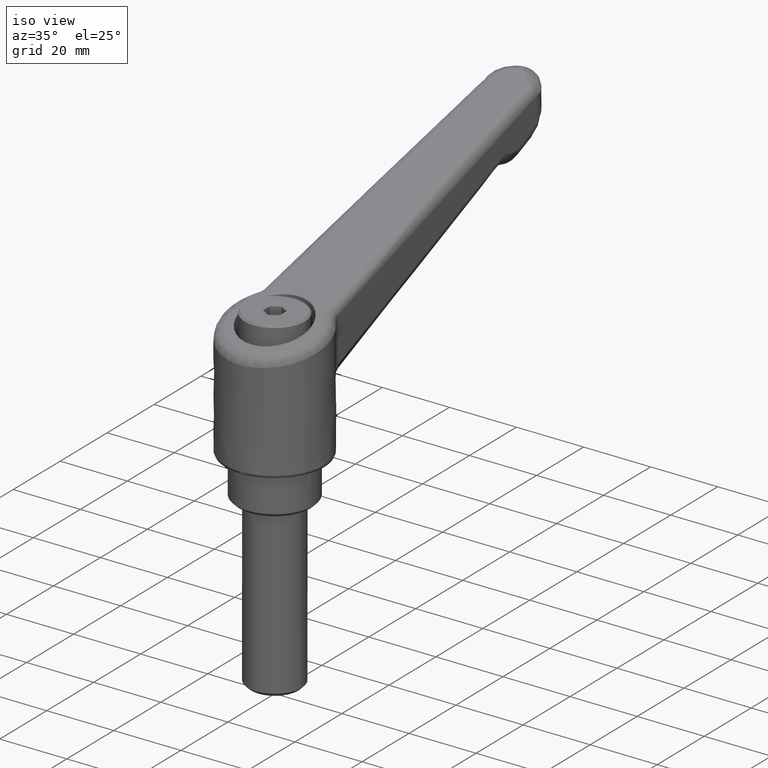
[diagram: clean part render]
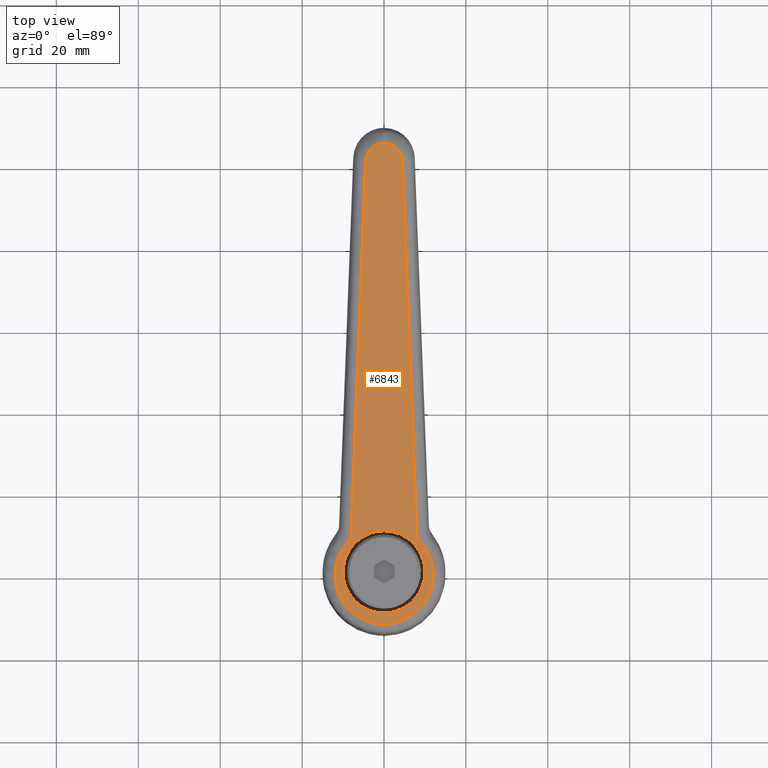
[diagram: tour spotlight — one face highlighted and labeled with its STEP entity id]
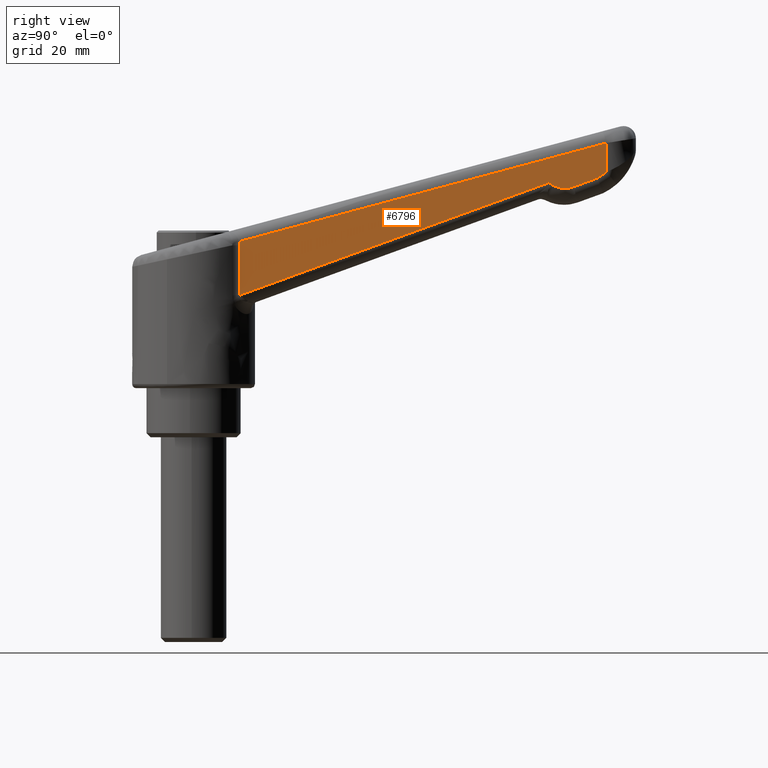
[diagram: tour spotlight — one face highlighted and labeled with its STEP entity id]
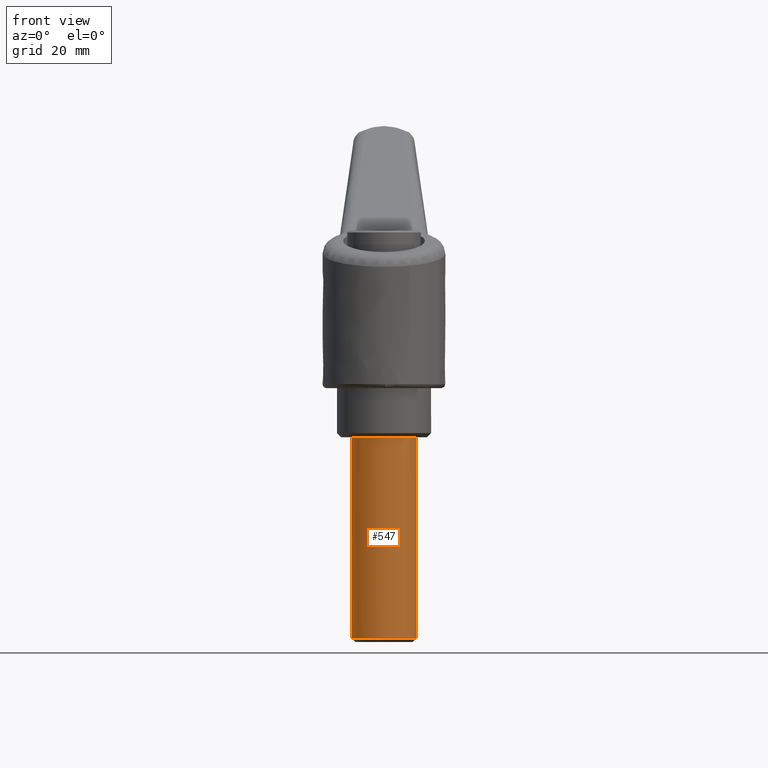
[diagram: tour spotlight — one face highlighted and labeled with its STEP entity id]
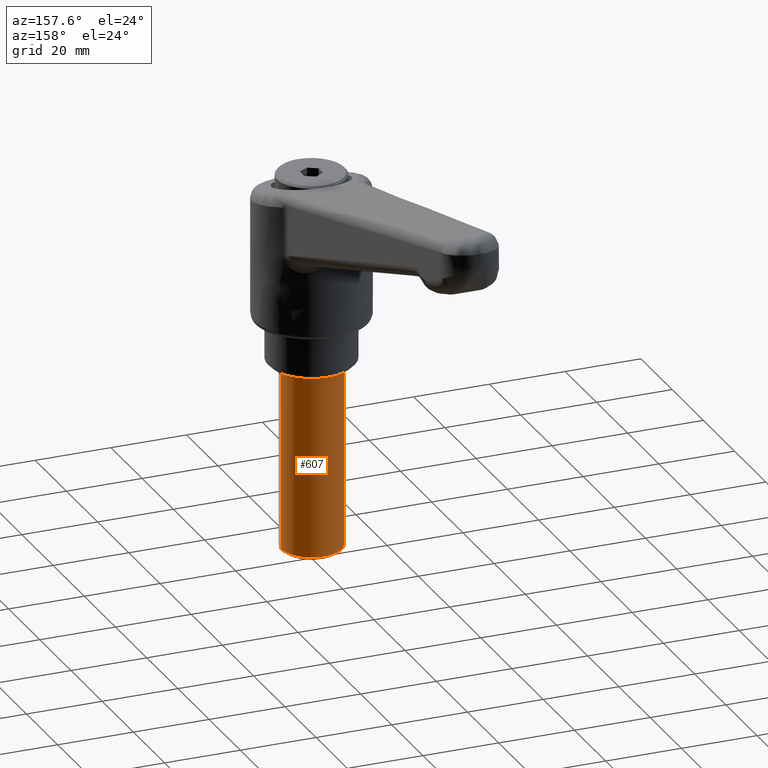
[diagram: tour spotlight — one face highlighted and labeled with its STEP entity id]
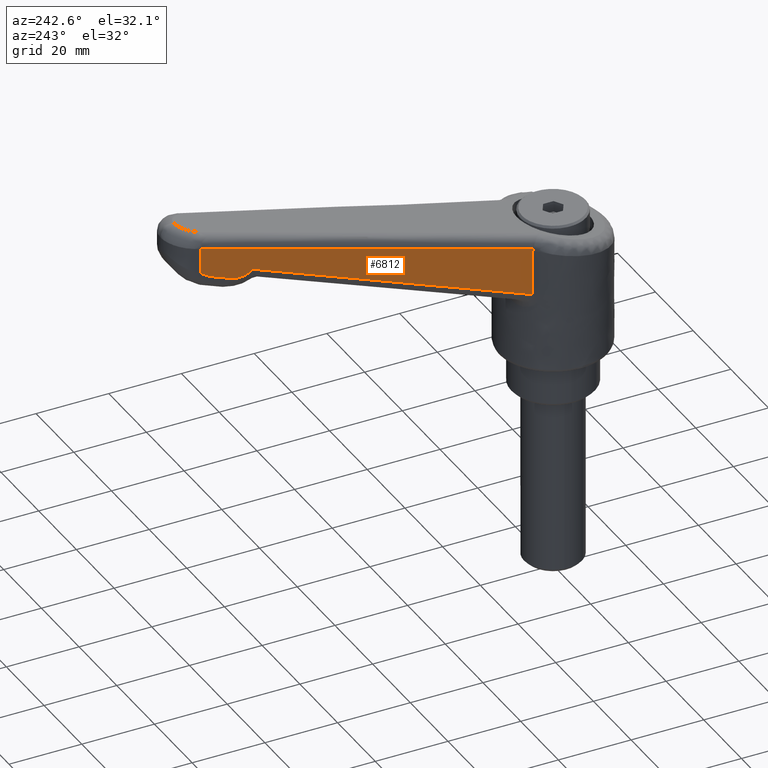
[diagram: tour spotlight — one face highlighted and labeled with its STEP entity id]
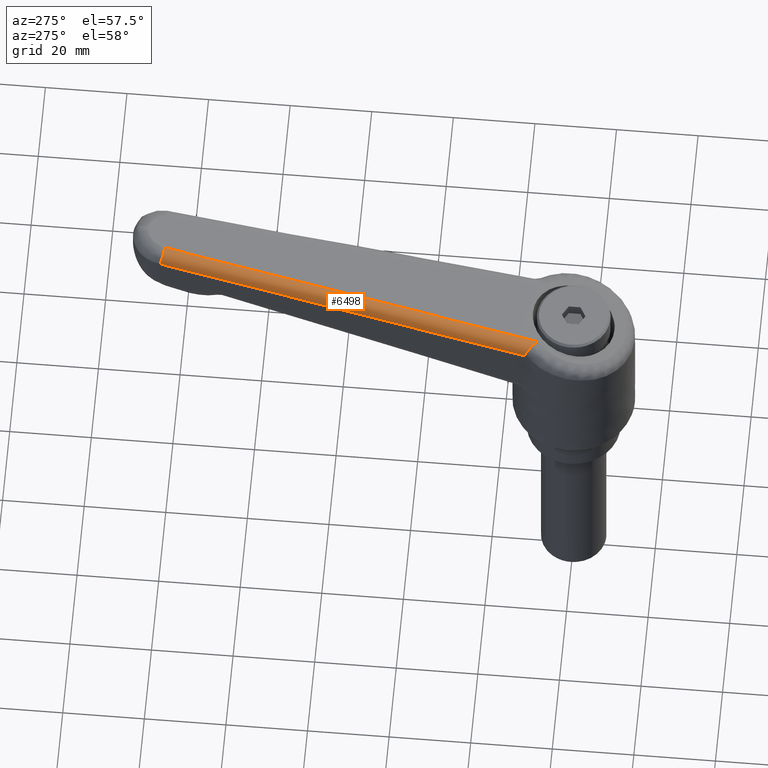
[diagram: tour spotlight — one face highlighted and labeled with its STEP entity id]
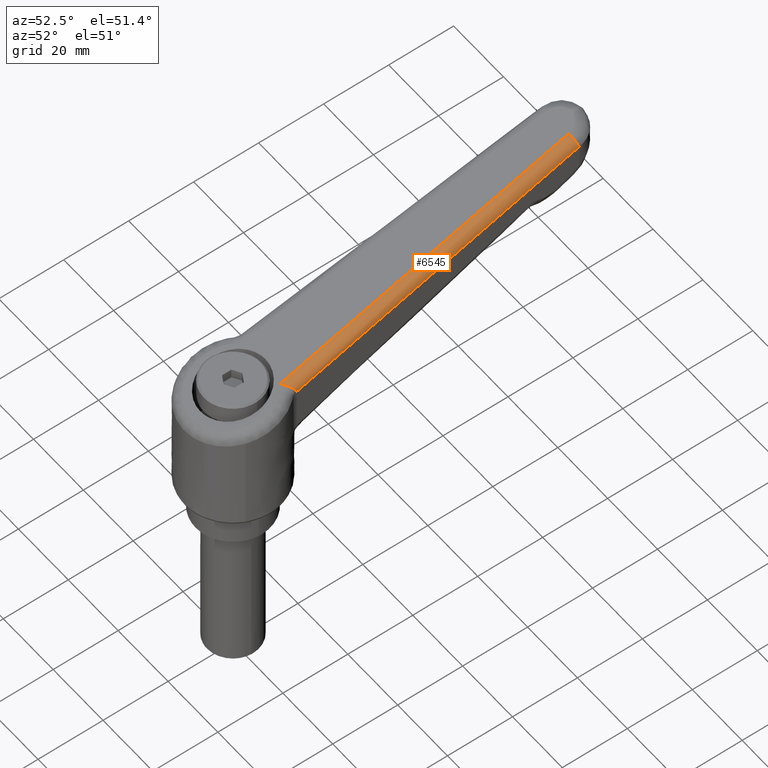
[diagram: tour spotlight — one face highlighted and labeled with its STEP entity id]
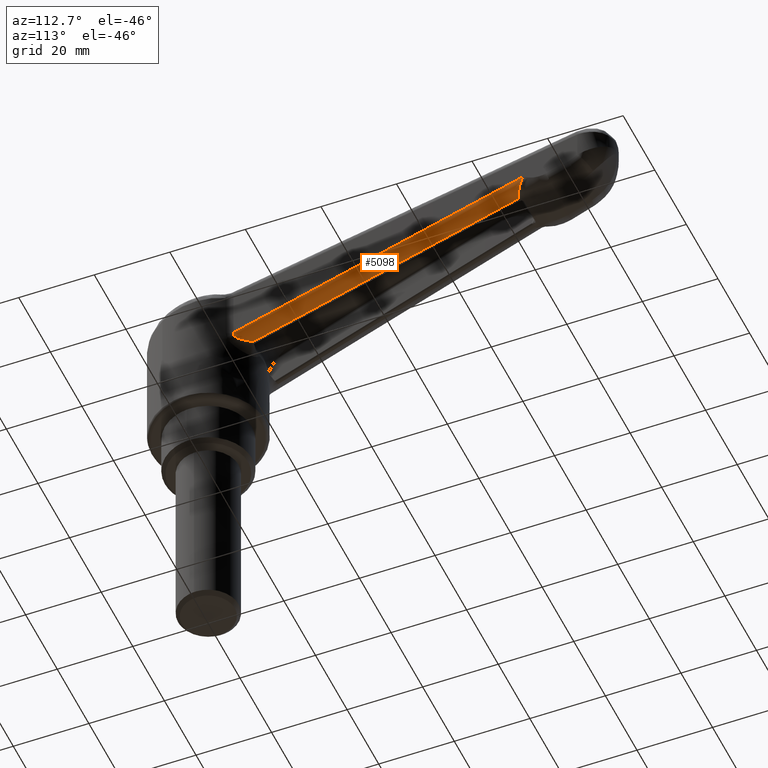
[diagram: tour spotlight — one face highlighted and labeled with its STEP entity id]
A machine part: a face-by-face anatomy tour. The part has 92 B-rep faces; the first image is the clean iso view, then the 8 largest visible faces are spotlighted one at a time (largest first), each with its STEP entity span.

Face 1 — top view, entity #6843. In plain terms, the highlighted face is a freeform B-spline surface patch.
Definition (entity closure, byte-faithful):
#1842=CARTESIAN_POINT('',(-0.087265355182425,-9.999619230639976,47.911946759522152));
#1843=VERTEX_POINT('',#1842);
#1849=CARTESIAN_POINT('',(9.999999999999998,1.224606E-015,50.618287176648231));
#1850=VERTEX_POINT('',#1849);
#1851=CARTESIAN_POINT('',(9.999999999999998,1.224606E-015,50.618287176648231));
#1852=CARTESIAN_POINT('',(9.999999999999998,-10.000000000000002,50.618287176648252));
#1853=CARTESIAN_POINT('',(1.836910E-015,-10.0,47.935359423886197));
#1854=CARTESIAN_POINT('',(-0.043633508405738,-10.0,47.923652868820994));
#1855=CARTESIAN_POINT('',(-0.087265355182425,-9.999619230639976,47.911946759522152));
#1863=(BOUNDED_CURVE()B_SPLINE_CURVE(2,(#1851,#1852,#1853,#1854,#1855),.UNSPECIFIED.,.F.,.U.)B_SPLINE_CURVE_WITH_KNOTS((3,2,3),(0.500000000000000,0.750000000000000,0.751539894341988),.UNSPECIFIED.)CURVE()GEOMETRIC_REPRESENTATION_ITEM()RATIONAL_B_SPLINE_CURVE((1.0,0.707106781186548,1.0,0.998195901558170,0.996414028084204))REPRESENTATION_ITEM(''));
#1864=EDGE_CURVE('',#1850,#1843,#1863,.T.);
#1866=CARTESIAN_POINT('',(-1.659384539936182,9.861361110344795,47.490158540388222));
#1867=VERTEX_POINT('',#1866);
#1868=CARTESIAN_POINT('',(-1.659384539936183,9.861361110344795,47.490158540388229));
#1869=CARTESIAN_POINT('',(-0.835483797330303,9.999999999999998,47.711205157202144));
#1870=CARTESIAN_POINT('',(-6.123032E-016,10.0,47.935359423886197));
#1871=CARTESIAN_POINT('',(9.999999999999998,10.000000000000002,50.618287176648252));
#1872=CARTESIAN_POINT('',(9.999999999999998,1.224606E-015,50.618287176648231));
#1880=(BOUNDED_CURVE()B_SPLINE_CURVE(2,(#1868,#1869,#1870,#1871,#1872),.UNSPECIFIED.,.F.,.U.)B_SPLINE_CURVE_WITH_KNOTS((3,2,3),(0.221449239578224,0.250000000000000,0.500000000000000),.UNSPECIFIED.)CURVE()GEOMETRIC_REPRESENTATION_ITEM()RATIONAL_B_SPLINE_CURVE((0.940741429844122,0.966550703521977,1.0,0.707106781186548,1.0))REPRESENTATION_ITEM(''));
#1881=EDGE_CURVE('',#1867,#1850,#1880,.T.);
#1929=CARTESIAN_POINT('',(-9.999999999999998,0.0,45.252431671124171));
#1930=VERTEX_POINT('',#1929);
#1931=CARTESIAN_POINT('',(-9.999999999999998,0.0,45.252431671124171));
#1932=CARTESIAN_POINT('',(-9.999999999999996,8.457874492810086,45.252431671124164));
#1933=CARTESIAN_POINT('',(-1.659384539936183,9.861361110344795,47.490158540388229));
#1941=(BOUNDED_CURVE()B_SPLINE_CURVE(2,(#1931,#1932,#1933),.UNSPECIFIED.,.F.,.U.)B_SPLINE_CURVE_WITH_KNOTS((3,3),(0.0,0.221449239578224),.UNSPECIFIED.)CURVE()GEOMETRIC_REPRESENTATION_ITEM()RATIONAL_B_SPLINE_CURVE((1.0,0.740556077664571,0.940741429844122))REPRESENTATION_ITEM(''));
#1942=EDGE_CURVE('',#1930,#1867,#1941,.T.);
#1944=CARTESIAN_POINT('',(-0.087265355182425,-9.999619230639976,47.911946759522159));
#1945=CARTESIAN_POINT('',(-9.999999999999998,-9.913112105555829,45.252431671124164));
#1946=CARTESIAN_POINT('',(-9.999999999999998,0.0,45.252431671124171));
#1954=(BOUNDED_CURVE()B_SPLINE_CURVE(2,(#1944,#1945,#1946),.UNSPECIFIED.,.F.,.U.)B_SPLINE_CURVE_WITH_KNOTS((3,3),(0.751539894341987,1.0),.UNSPECIFIED.)CURVE()GEOMETRIC_REPRESENTATION_ITEM()RATIONAL_B_SPLINE_CURVE((0.996414028084206,0.708910879628376,1.0))REPRESENTATION_ITEM(''));
#1955=EDGE_CURVE('',#1843,#1930,#1954,.T.);
#4429=CARTESIAN_POINT('',(8.123781733177820,8.047932275665861,50.114911370818703));
#4430=VERTEX_POINT('',#4429);
#4961=CARTESIAN_POINT('',(8.123781733177699,-8.047932275665991,50.114911370818703));
#4962=VERTEX_POINT('',#4961);
#6430=CARTESIAN_POINT('',(8.123781733177834,8.047932275665847,50.114911370818660));
#6431=CARTESIAN_POINT('',(2.598695241357906,14.158784061128220,48.632570582287229));
#6432=CARTESIAN_POINT('',(-5.089345353260654,11.198526960557951,46.569924834720908));
#6433=CARTESIAN_POINT('',(-12.777385947879289,8.238269859987652,44.507279087154565));
#6434=CARTESIAN_POINT('',(-12.777385947879290,9.886232E-014,44.507279087154572));
#6435=CARTESIAN_POINT('',(-12.777385947879289,-8.238269859987508,44.507279087154565));
#6436=CARTESIAN_POINT('',(-5.089345353260838,-11.198526960557880,46.569924834720858));
#6437=CARTESIAN_POINT('',(2.598695241357674,-14.158784061128268,48.632570582287173));
#6438=CARTESIAN_POINT('',(8.123781733177703,-8.047932275665994,50.114911370818632));
#6446=(BOUNDED_CURVE()B_SPLINE_CURVE(2,(#6430,#6431,#6432,#6433,#6434,#6435,#6436,#6437,#6438),.UNSPECIFIED.,.F.,.U.)B_SPLINE_CURVE_WITH_KNOTS((3,2,2,2,3),(0.0,0.250000000000000,0.500000000000000,0.750000000000000,1.0),.UNSPECIFIED.)CURVE()GEOMETRIC_REPRESENTATION_ITEM()RATIONAL_B_SPLINE_CURVE((1.0,0.824417961488121,1.0,0.824417961488121,1.0,0.824417961488121,1.0,0.824417961488121,1.0))REPRESENTATION_ITEM(''));
#6447=EDGE_CURVE('',#4430,#4962,#6446,.T.);
#6474=CARTESIAN_POINT('',(99.896618855952298,4.496628667928765,74.736900537458794));
#6475=VERTEX_POINT('',#6474);
#6476=CARTESIAN_POINT('',(99.896618855952298,4.496628667928765,74.736900537458794));
#6477=CARTESIAN_POINT('',(8.123781733177820,8.047932275665861,50.114911370818703));
#6478=QUASI_UNIFORM_CURVE('',1,(#6476,#6477),.UNSPECIFIED.,.F.,.U.);
#6479=EDGE_CURVE('',#6475,#4430,#6478,.T.);
#6513=CARTESIAN_POINT('',(99.896618855961606,-4.496628667928494,74.736900537461295));
#6514=VERTEX_POINT('',#6513);
#6515=CARTESIAN_POINT('',(8.123781733177699,-8.047932275665991,50.114911370818703));
#6516=CARTESIAN_POINT('',(99.896618855961606,-4.496628667928494,74.736900537461295));
#6517=QUASI_UNIFORM_CURVE('',1,(#6515,#6516),.UNSPECIFIED.,.F.,.U.);
#6518=EDGE_CURVE('',#4962,#6514,#6517,.T.);
#6590=CARTESIAN_POINT('',(104.222614052114590,-0.000005887852206,75.897533794468700));
#6591=VERTEX_POINT('',#6590);
#6623=CARTESIAN_POINT('',(104.222614052114590,-0.000005887852206,75.897533794468700));
#6624=CARTESIAN_POINT('',(104.222614052120700,4.329227039856051,75.897533794470320));
#6625=CARTESIAN_POINT('',(99.896618855952298,4.496628667928764,74.736900537458780));
#6633=(BOUNDED_CURVE()B_SPLINE_CURVE(2,(#6623,#6624,#6625),.UNSPECIFIED.,.F.,.U.)CURVE()GEOMETRIC_REPRESENTATION_ITEM()QUASI_UNIFORM_CURVE()RATIONAL_B_SPLINE_CURVE((1.0,0.720648227009823,1.0))REPRESENTATION_ITEM(''));
#6634=EDGE_CURVE('',#6591,#6475,#6633,.T.);
#6698=CARTESIAN_POINT('',(99.896618855961606,-4.496628667928494,74.736900537461295));
#6699=CARTESIAN_POINT('',(104.222602723306790,-4.329227478244406,75.897530755031397));
#6700=CARTESIAN_POINT('',(104.222614052114590,-0.000005887852206,75.897533794468686));
#6708=(BOUNDED_CURVE()B_SPLINE_CURVE(2,(#6698,#6699,#6700),.UNSPECIFIED.,.F.,.U.)CURVE()GEOMETRIC_REPRESENTATION_ITEM()QUASI_UNIFORM_CURVE()RATIONAL_B_SPLINE_CURVE((1.0,0.720649134132096,1.0))REPRESENTATION_ITEM(''));
#6709=EDGE_CURVE('',#6514,#6591,#6708,.T.);
#6825=CARTESIAN_POINT('',(-18.621535303103460,-13.188954606900669,42.939336037512867));
#6826=CARTESIAN_POINT('',(110.066758177031800,-13.188954606900669,77.465475440856835));
#6827=CARTESIAN_POINT('',(-18.621535303103460,13.188955458923500,42.939336037512867));
#6828=CARTESIAN_POINT('',(110.066758177031800,13.188955458923500,77.465475440856835));
#6829=B_SPLINE_SURFACE_WITH_KNOTS('',1,1,((#6825,#6827),(#6826,#6828)),.UNSPECIFIED.,.F.,.F.,.U.,(2,2),(2,2),(0.0,133.239375489862510),(0.0,26.377910065824160),.UNSPECIFIED.);
#6830=ORIENTED_EDGE('',*,*,#6479,.T.);
#6831=ORIENTED_EDGE('',*,*,#6447,.T.);
#6832=ORIENTED_EDGE('',*,*,#6518,.T.);
#6833=ORIENTED_EDGE('',*,*,#6709,.T.);
#6834=ORIENTED_EDGE('',*,*,#6634,.T.);
#6835=EDGE_LOOP('',(#6830,#6831,#6832,#6833,#6834));
#6836=FACE_OUTER_BOUND('',#6835,.T.);
#6837=ORIENTED_EDGE('',*,*,#1864,.T.);
#6838=ORIENTED_EDGE('',*,*,#1955,.T.);
#6839=ORIENTED_EDGE('',*,*,#1942,.T.);
#6840=ORIENTED_EDGE('',*,*,#1881,.T.);
#6841=EDGE_LOOP('',(#6837,#6838,#6839,#6840));
#6842=FACE_BOUND('',#6841,.T.);
#6843=ADVANCED_FACE('',(#6836,#6842),#6829,.T.);

Face 2 — right view, entity #6796. In plain terms, the highlighted face is a freeform B-spline surface patch.
Definition (entity closure, byte-faithful):
#3733=CARTESIAN_POINT('',(86.751688532695795,-8.037621317903300,62.176774970644807));
#3734=VERTEX_POINT('',#3733);
#4686=CARTESIAN_POINT('',(11.250690499999600,-10.959258864561560,34.696662421268712));
#4687=VERTEX_POINT('',#4686);
#4779=CARTESIAN_POINT('',(11.250690499999680,-10.959258864561560,46.862331811850687));
#4780=VERTEX_POINT('',#4779);
#4796=CARTESIAN_POINT('',(11.250690499999680,-10.959258864561560,46.862331811850687));
#4797=CARTESIAN_POINT('',(11.250690499999600,-10.959258864561560,34.696662421268712));
#4798=QUASI_UNIFORM_CURVE('',1,(#4796,#4797),.UNSPECIFIED.,.F.,.U.);
#4799=EDGE_CURVE('',#4780,#4687,#4798,.T.);
#4852=CARTESIAN_POINT('',(11.131691859817240,-10.963863716208801,47.784693627171002));
#4853=VERTEX_POINT('',#4852);
#4877=CARTESIAN_POINT('',(11.131691859817220,-10.963863716208801,47.784693627171002));
#4878=CARTESIAN_POINT('',(11.211599486978750,-10.960771556769020,47.482439214723406));
#4879=CARTESIAN_POINT('',(11.250690499999680,-10.959258864561560,47.174910955601923));
#4880=CARTESIAN_POINT('',(11.250690499999680,-10.959258864561560,46.862331811850687));
#4881=QUASI_UNIFORM_CURVE('',3,(#4877,#4878,#4879,#4880),.UNSPECIFIED.,.F.,.U.);
#4882=EDGE_CURVE('',#4853,#4780,#4881,.T.);
#5090=CARTESIAN_POINT('',(11.250690499999600,-10.959258864561560,34.696662421268712));
#5091=CARTESIAN_POINT('',(86.751688532695795,-8.037621317903300,62.176774970644807));
#5092=QUASI_UNIFORM_CURVE('',1,(#5090,#5091),.UNSPECIFIED.,.F.,.U.);
#5093=EDGE_CURVE('',#4687,#3734,#5092,.T.);
#5260=CARTESIAN_POINT('',(92.672207909579910,-7.808516906598090,61.125059638425803));
#5261=VERTEX_POINT('',#5260);
#5262=CARTESIAN_POINT('',(86.751688532695738,-8.037621317903298,62.176774970644807));
#5263=CARTESIAN_POINT('',(89.407452149465854,-7.934852097628290,59.936789120518732));
#5264=CARTESIAN_POINT('',(92.672207909579924,-7.808516906598260,61.125059638425761));
#5272=(BOUNDED_CURVE()B_SPLINE_CURVE(2,(#5262,#5263,#5264),.UNSPECIFIED.,.F.,.U.)CURVE()GEOMETRIC_REPRESENTATION_ITEM()QUASI_UNIFORM_CURVE()RATIONAL_B_SPLINE_CURVE((1.0,0.865389062984240,1.0))REPRESENTATION_ITEM(''));
#5273=EDGE_CURVE('',#3734,#5261,#5272,.T.);
#5324=CARTESIAN_POINT('',(98.574353870232898,-7.580123485400731,63.273258938082812));
#5325=VERTEX_POINT('',#5324);
#5364=CARTESIAN_POINT('',(92.672207909579910,-7.808516906598090,61.125059638425803));
#5365=CARTESIAN_POINT('',(98.574353870232898,-7.580123485400731,63.273258938082812));
#5366=QUASI_UNIFORM_CURVE('',1,(#5364,#5365),.UNSPECIFIED.,.F.,.U.);
#5367=EDGE_CURVE('',#5261,#5325,#5366,.T.);
#5409=CARTESIAN_POINT('',(100.790008006395200,-7.494385038449110,64.766694868706097));
#5410=VERTEX_POINT('',#5409);
#5424=CARTESIAN_POINT('',(98.574353870232898,-7.580123485400815,63.273258938082790));
#5425=CARTESIAN_POINT('',(99.773548918764419,-7.533718624924147,63.884423820971136));
#5426=CARTESIAN_POINT('',(100.790008006395200,-7.494385038449194,64.766694868706026));
#5434=(BOUNDED_CURVE()B_SPLINE_CURVE(2,(#5424,#5425,#5426),.UNSPECIFIED.,.F.,.U.)CURVE()GEOMETRIC_REPRESENTATION_ITEM()QUASI_UNIFORM_CURVE()RATIONAL_B_SPLINE_CURVE((1.0,0.992597108797235,1.0))REPRESENTATION_ITEM(''));
#5435=EDGE_CURVE('',#5325,#5410,#5434,.T.);
#6521=CARTESIAN_POINT('',(100.790008006395200,-7.494385038449110,71.839372092727800));
#6522=VERTEX_POINT('',#6521);
#6523=CARTESIAN_POINT('',(100.790008006395200,-7.494385038449110,71.839372092727800));
#6524=CARTESIAN_POINT('',(11.131691859817240,-10.963863716208801,47.784693627171002));
#6525=QUASI_UNIFORM_CURVE('',1,(#6523,#6524),.UNSPECIFIED.,.F.,.U.);
#6526=EDGE_CURVE('',#6522,#4853,#6525,.T.);
#6741=CARTESIAN_POINT('',(100.790008006395200,-7.494385038449110,64.766694868706097));
#6742=CARTESIAN_POINT('',(100.790008006395200,-7.494385038449110,71.839372092727800));
#6743=QUASI_UNIFORM_CURVE('',1,(#6741,#6742),.UNSPECIFIED.,.F.,.U.);
#6744=EDGE_CURVE('',#5410,#6522,#6743,.T.);
#6781=CARTESIAN_POINT('',(105.268441565789700,-7.321084552650538,73.694648841450828));
#6782=CARTESIAN_POINT('',(6.653256697207134,-11.137164264046451,73.694648841450828));
#6783=CARTESIAN_POINT('',(105.268441565789700,-7.321084552650538,32.841386004627402));
#6784=CARTESIAN_POINT('',(6.653256697207134,-11.137164264046451,32.841386004627402));
#6785=B_SPLINE_SURFACE_WITH_KNOTS('',1,1,((#6781,#6783),(#6782,#6784)),.UNSPECIFIED.,.F.,.F.,.U.,(2,2),(2,2),(0.0,98.688992045863131),(0.0,40.853262836823433),.UNSPECIFIED.);
#6786=ORIENTED_EDGE('',*,*,#4882,.T.);
#6787=ORIENTED_EDGE('',*,*,#4799,.T.);
#6788=ORIENTED_EDGE('',*,*,#5093,.T.);
#6789=ORIENTED_EDGE('',*,*,#5273,.T.);
#6790=ORIENTED_EDGE('',*,*,#5367,.T.);
#6791=ORIENTED_EDGE('',*,*,#5435,.T.);
#6792=ORIENTED_EDGE('',*,*,#6744,.T.);
#6793=ORIENTED_EDGE('',*,*,#6526,.T.);
#6794=EDGE_LOOP('',(#6786,#6787,#6788,#6789,#6790,#6791,#6792,#6793));
#6795=FACE_OUTER_BOUND('',#6794,.T.);
#6796=ADVANCED_FACE('',(#6795),#6785,.T.);

Face 3 — front view, entity #547. In plain terms, the highlighted face is a freeform B-spline surface patch.
Definition (entity closure, byte-faithful):
#62=CARTESIAN_POINT('',(-1.464989031866481,7.864719139092996,-48.999999999980950));
#63=VERTEX_POINT('',#62);
#64=CARTESIAN_POINT('',(-8.0,0.0,-49.0));
#65=VERTEX_POINT('',#64);
#66=CARTESIAN_POINT('',(-1.464989031866481,7.864719139092996,-48.999999999980943));
#67=CARTESIAN_POINT('',(-8.0,6.647419547926416,-48.999999999999986));
#68=CARTESIAN_POINT('',(-8.0,0.0,-49.0));
#76=(BOUNDED_CURVE()B_SPLINE_CURVE(2,(#66,#67,#68),.UNSPECIFIED.,.F.,.U.)B_SPLINE_CURVE_WITH_KNOTS((3,3),(0.281445263719822,0.500000000000000),.UNSPECIFIED.)CURVE()GEOMETRIC_REPRESENTATION_ITEM()RATIONAL_B_SPLINE_CURVE((0.935586817225157,0.743947199215894,1.0))REPRESENTATION_ITEM(''));
#77=EDGE_CURVE('',#63,#65,#76,.T.);
#125=CARTESIAN_POINT('',(-0.488388316331719,-7.985078387371701,-49.0));
#126=VERTEX_POINT('',#125);
#142=CARTESIAN_POINT('',(-8.0,0.0,-49.0));
#143=CARTESIAN_POINT('',(-8.0,-7.525648535145764,-49.000000000000007));
#144=CARTESIAN_POINT('',(-0.488388316331719,-7.985078387371700,-49.000000000000007));
#152=(BOUNDED_CURVE()B_SPLINE_CURVE(2,(#142,#143,#144),.UNSPECIFIED.,.F.,.U.)B_SPLINE_CURVE_WITH_KNOTS((3,3),(0.500000000000000,0.739332962239684),.UNSPECIFIED.)CURVE()GEOMETRIC_REPRESENTATION_ITEM()RATIONAL_B_SPLINE_CURVE((1.0,0.719603993285841,0.976072041668307))REPRESENTATION_ITEM(''));
#153=EDGE_CURVE('',#65,#126,#152,.T.);
#180=CARTESIAN_POINT('',(0.944261177153023,7.944077720488263,-49.000000000000057));
#181=VERTEX_POINT('',#180);
#182=CARTESIAN_POINT('',(0.944261177153023,7.944077720488263,-49.000000000000050));
#183=CARTESIAN_POINT('',(0.473786540034358,8.0,-49.000000000000007));
#184=CARTESIAN_POINT('',(0.0,8.0,-49.0));
#185=CARTESIAN_POINT('',(-0.738740607598723,8.0,-49.0));
#186=CARTESIAN_POINT('',(-1.464989031866482,7.864719139092996,-48.999999999980950));
#194=(BOUNDED_CURVE()B_SPLINE_CURVE(2,(#182,#183,#184,#185,#186),.UNSPECIFIED.,.F.,.U.)B_SPLINE_CURVE_WITH_KNOTS((3,2,3),(0.229562743699173,0.250000000000000,0.281445263719822),.UNSPECIFIED.)CURVE()GEOMETRIC_REPRESENTATION_ITEM()RATIONAL_B_SPLINE_CURVE((0.956027283759343,0.976056264873341,1.0,0.963159581970654,0.935586817225158))REPRESENTATION_ITEM(''));
#195=EDGE_CURVE('',#181,#63,#194,.T.);
#476=CARTESIAN_POINT('',(0.944273877254068,7.944076210909330,-50.225000000000016));
#477=CARTESIAN_POINT('',(0.716917829103821,7.971100923588844,-50.225000000000016));
#478=CARTESIAN_POINT('',(0.488388316278856,7.985078387374934,-50.225000000000009));
#479=CARTESIAN_POINT('',(-7.496690071096078,8.473466703653790,-50.225000000000016));
#480=CARTESIAN_POINT('',(-7.985078387374934,0.488388316278856,-50.225000000000009));
#481=CARTESIAN_POINT('',(-8.473466703653790,-7.496690071096078,-50.225000000000016));
#482=CARTESIAN_POINT('',(-0.488388316278856,-7.985078387374934,-50.225000000000009));
#483=CARTESIAN_POINT('',(0.944273877254068,7.944076210909330,1.255625000000002));
#484=CARTESIAN_POINT('',(0.716917829103821,7.971100923588844,1.255625000000002));
#485=CARTESIAN_POINT('',(0.488388316278856,7.985078387374934,1.255625000000002));
#486=CARTESIAN_POINT('',(-7.496690071096078,8.473466703653790,1.255625000000002));
#487=CARTESIAN_POINT('',(-7.985078387374934,0.488388316278856,1.255625000000002));
#488=CARTESIAN_POINT('',(-8.473466703653790,-7.496690071096078,1.255625000000002));
#489=CARTESIAN_POINT('',(-0.488388316278856,-7.985078387374934,1.255625000000002));
#497=(BOUNDED_SURFACE()B_SPLINE_SURFACE(2,1,((#476,#483),(#477,#484),(#478,#485),(#479,#486),(#480,#487),(#481,#488),(#482,#489)),.UNSPECIFIED.,.F.,.F.,.U.)B_SPLINE_SURFACE_WITH_KNOTS((3,2,2,3),(2,2),(0.0,0.530193359837562,13.785027355776601,27.039861351715629),(0.0,51.480625000000032),.UNSPECIFIED.)GEOMETRIC_REPRESENTATION_ITEM()RATIONAL_B_SPLINE_SURFACE(((0.977505800795127,0.977505800795127),(0.988284271247462,0.988284271247462),(1.0,1.0),(0.707106781186548,0.707106781186548),(1.0,1.0),(0.707106781186548,0.707106781186548),(1.0,1.0)))REPRESENTATION_ITEM('')SURFACE());
#498=ORIENTED_EDGE('',*,*,#195,.T.);
#499=ORIENTED_EDGE('',*,*,#77,.T.);
#500=ORIENTED_EDGE('',*,*,#153,.T.);
#501=CARTESIAN_POINT('',(-0.488388316331719,-7.985078387371701,3.330669E-016));
#502=VERTEX_POINT('',#501);
#503=CARTESIAN_POINT('',(-0.488388316331719,-7.985078387371701,-49.0));
#504=CARTESIAN_POINT('',(-0.488388316331719,-7.985078387371701,3.330669E-016));
#505=QUASI_UNIFORM_CURVE('',1,(#503,#504),.UNSPECIFIED.,.F.,.U.);
#506=EDGE_CURVE('',#126,#502,#505,.T.);
#507=ORIENTED_EDGE('',*,*,#506,.T.);
#508=CARTESIAN_POINT('',(-8.0,0.0,0.0));
#509=VERTEX_POINT('',#508);
#510=CARTESIAN_POINT('',(-8.0,0.0,0.0));
#511=CARTESIAN_POINT('',(-8.0,-7.525648535145764,0.0));
#512=CARTESIAN_POINT('',(-0.488388316331719,-7.985078387371700,3.330669E-016));
#520=(BOUNDED_CURVE()B_SPLINE_CURVE(2,(#510,#511,#512),.UNSPECIFIED.,.F.,.U.)B_SPLINE_CURVE_WITH_KNOTS((3,3),(0.500000000000000,0.739332962239684),.UNSPECIFIED.)CURVE()GEOMETRIC_REPRESENTATION_ITEM()RATIONAL_B_SPLINE_CURVE((1.0,0.719603993285841,0.976072041668307))REPRESENTATION_ITEM(''));
#521=EDGE_CURVE('',#509,#502,#520,.T.);
#522=ORIENTED_EDGE('',*,*,#521,.F.);
#523=CARTESIAN_POINT('',(0.944261330498565,7.944077702261315,6.133165E-015));
#524=VERTEX_POINT('',#523);
#525=CARTESIAN_POINT('',(0.944261330498565,7.944077702261315,6.133165E-015));
#526=CARTESIAN_POINT('',(0.473786617517667,8.0,0.0));
#527=CARTESIAN_POINT('',(0.0,8.0,0.0));
#528=CARTESIAN_POINT('',(-8.0,8.0,0.0));
#529=CARTESIAN_POINT('',(-8.0,0.0,0.0));
#537=(BOUNDED_CURVE()B_SPLINE_CURVE(2,(#525,#526,#527,#528,#529),.UNSPECIFIED.,.F.,.U.)B_SPLINE_CURVE_WITH_KNOTS((3,2,3),(0.229562740436880,0.250000000000000,0.500000000000000),.UNSPECIFIED.)CURVE()GEOMETRIC_REPRESENTATION_ITEM()RATIONAL_B_SPLINE_CURVE((0.956027277365100,0.976056261051327,1.0,0.707106781186548,1.0))REPRESENTATION_ITEM(''));
#538=EDGE_CURVE('',#524,#509,#537,.T.);
#539=ORIENTED_EDGE('',*,*,#538,.F.);
#540=CARTESIAN_POINT('',(0.944261177153023,7.944077720488263,-49.000000000000057));
#541=CARTESIAN_POINT('',(0.944261330498565,7.944077702261315,6.133165E-015));
#542=QUASI_UNIFORM_CURVE('',1,(#540,#541),.UNSPECIFIED.,.F.,.U.);
#543=EDGE_CURVE('',#181,#524,#542,.T.);
#544=ORIENTED_EDGE('',*,*,#543,.F.);
#545=EDGE_LOOP('',(#498,#499,#500,#507,#522,#539,#544));
#546=FACE_OUTER_BOUND('',#545,.T.);
#547=ADVANCED_FACE('',(#546),#497,.T.);

Face 4 — auxiliary view, entity #607. In plain terms, the highlighted face is a freeform B-spline surface patch.
Definition (entity closure, byte-faithful):
#118=CARTESIAN_POINT('',(0.069812285404132,-7.999695384693874,-48.999999999807130));
#119=VERTEX_POINT('',#118);
#125=CARTESIAN_POINT('',(-0.488388316331719,-7.985078387371701,-49.0));
#126=VERTEX_POINT('',#125);
#127=CARTESIAN_POINT('',(-0.488388316331719,-7.985078387371701,-49.0));
#128=CARTESIAN_POINT('',(-0.244422106441722,-8.0,-49.000000000000007));
#129=CARTESIAN_POINT('',(0.0,-8.0,-49.0));
#130=CARTESIAN_POINT('',(0.034906807981159,-8.0,-49.000000000000007));
#131=CARTESIAN_POINT('',(0.069812285404132,-7.999695384693875,-48.999999999807130));
#139=(BOUNDED_CURVE()B_SPLINE_CURVE(2,(#127,#128,#129,#130,#131),.UNSPECIFIED.,.F.,.U.)B_SPLINE_CURVE_WITH_KNOTS((3,2,3),(0.739332962239684,0.750000000000000,0.751539894397321),.UNSPECIFIED.)CURVE()GEOMETRIC_REPRESENTATION_ITEM()RATIONAL_B_SPLINE_CURVE((0.976072041668305,0.987502787900705,1.0,0.998195901493344,0.996414027956149))REPRESENTATION_ITEM(''));
#140=EDGE_CURVE('',#126,#119,#139,.T.);
#180=CARTESIAN_POINT('',(0.944261177153023,7.944077720488263,-49.000000000000057));
#181=VERTEX_POINT('',#180);
#197=CARTESIAN_POINT('',(8.0,0.0,-49.0));
#198=VERTEX_POINT('',#197);
#199=CARTESIAN_POINT('',(8.0,0.0,-49.0));
#200=CARTESIAN_POINT('',(8.0,7.105407646896071,-49.000000000000007));
#201=CARTESIAN_POINT('',(0.944261177153023,7.944077720488263,-49.000000000000050));
#209=(BOUNDED_CURVE()B_SPLINE_CURVE(2,(#199,#200,#201),.UNSPECIFIED.,.F.,.U.)B_SPLINE_CURVE_WITH_KNOTS((3,3),(0.0,0.229562743699173),.UNSPECIFIED.)CURVE()GEOMETRIC_REPRESENTATION_ITEM()RATIONAL_B_SPLINE_CURVE((1.0,0.731050516313207,0.956027283759343))REPRESENTATION_ITEM(''));
#210=EDGE_CURVE('',#198,#181,#209,.T.);
#212=CARTESIAN_POINT('',(0.069812285404132,-7.999695384693874,-48.999999999807130));
#213=CARTESIAN_POINT('',(8.0,-7.930489681953294,-49.000000000000007));
#214=CARTESIAN_POINT('',(8.0,0.0,-49.0));
#222=(BOUNDED_CURVE()B_SPLINE_CURVE(2,(#212,#213,#214),.UNSPECIFIED.,.F.,.U.)B_SPLINE_CURVE_WITH_KNOTS((3,3),(0.751539894397320,1.0),.UNSPECIFIED.)CURVE()GEOMETRIC_REPRESENTATION_ITEM()RATIONAL_B_SPLINE_CURVE((0.996414027956150,0.708910879693203,1.0))REPRESENTATION_ITEM(''));
#223=EDGE_CURVE('',#119,#198,#222,.T.);
#501=CARTESIAN_POINT('',(-0.488388316331719,-7.985078387371701,3.330669E-016));
#502=VERTEX_POINT('',#501);
#503=CARTESIAN_POINT('',(-0.488388316331719,-7.985078387371701,-49.0));
#504=CARTESIAN_POINT('',(-0.488388316331719,-7.985078387371701,3.330669E-016));
#505=QUASI_UNIFORM_CURVE('',1,(#503,#504),.UNSPECIFIED.,.F.,.U.);
#506=EDGE_CURVE('',#126,#502,#505,.T.);
#523=CARTESIAN_POINT('',(0.944261330498565,7.944077702261315,6.133165E-015));
#524=VERTEX_POINT('',#523);
#540=CARTESIAN_POINT('',(0.944261177153023,7.944077720488263,-49.000000000000057));
#541=CARTESIAN_POINT('',(0.944261330498565,7.944077702261315,6.133165E-015));
#542=QUASI_UNIFORM_CURVE('',1,(#540,#541),.UNSPECIFIED.,.F.,.U.);
#543=EDGE_CURVE('',#181,#524,#542,.T.);
#548=CARTESIAN_POINT('',(-0.598424232235751,-7.978348302444348,-50.224999999999994));
#549=CARTESIAN_POINT('',(-0.543563743341382,-7.981703713687867,-50.225000000000001));
#550=CARTESIAN_POINT('',(7.496690071096078,-8.473466703653790,-50.225000000000016));
#551=CARTESIAN_POINT('',(7.985078387374934,-0.488388316278856,-50.225000000000009));
#552=CARTESIAN_POINT('',(8.446289573860220,7.052347926716008,-50.225000000000009));
#553=CARTESIAN_POINT('',(0.888102827003193,7.950752991695621,-50.225000000000023));
#554=CARTESIAN_POINT('',(0.832233671239779,7.957393887745836,-50.225000000000023));
#555=CARTESIAN_POINT('',(-0.598424232235751,-7.978348302444348,1.255625000000002));
#556=CARTESIAN_POINT('',(-0.543563743341382,-7.981703713687867,1.255625000000002));
#557=CARTESIAN_POINT('',(7.496690071096078,-8.473466703653790,1.255625000000002));
#558=CARTESIAN_POINT('',(7.985078387374934,-0.488388316278856,1.255625000000002));
#559=CARTESIAN_POINT('',(8.446289573860220,7.052347926716008,1.255625000000002));
#560=CARTESIAN_POINT('',(0.888102827003193,7.950752991695621,1.255625000000002));
#561=CARTESIAN_POINT('',(0.832233671239779,7.957393887745836,1.255625000000002));
#569=(BOUNDED_SURFACE()B_SPLINE_SURFACE(2,1,((#548,#555),(#549,#556),(#550,#557),(#551,#558),(#552,#559),(#553,#560),(#554,#561)),.UNSPECIFIED.,.F.,.F.,.U.)B_SPLINE_SURFACE_WITH_KNOTS((3,1,2,1,3),(2,2),(0.0,0.129897443553057,13.384731439492100,26.109372075593569,26.239284165870689),(0.0,51.480625000000032),.UNSPECIFIED.)GEOMETRIC_REPRESENTATION_ITEM()RATIONAL_B_SPLINE_SURFACE(((1.005740710199698,1.005740710199698),(1.002870355099849,1.002870355099849),(0.707106781186548,0.707106781186548),(1.0,1.0),(0.718822509939086,0.718822509939086),(0.980146825244928,0.980146825244928),(0.982787849694728,0.982787849694728)))REPRESENTATION_ITEM('')SURFACE());
#570=ORIENTED_EDGE('',*,*,#210,.T.);
#571=ORIENTED_EDGE('',*,*,#543,.T.);
#572=CARTESIAN_POINT('',(8.0,0.0,0.0));
#573=VERTEX_POINT('',#572);
#574=CARTESIAN_POINT('',(8.0,0.0,0.0));
#575=CARTESIAN_POINT('',(8.0,7.105407508774000,0.0));
#576=CARTESIAN_POINT('',(0.944261330498565,7.944077702261315,6.133165E-015));
#584=(BOUNDED_CURVE()B_SPLINE_CURVE(2,(#574,#575,#576),.UNSPECIFIED.,.F.,.U.)B_SPLINE_CURVE_WITH_KNOTS((3,3),(0.0,0.229562740436880),.UNSPECIFIED.)CURVE()GEOMETRIC_REPRESENTATION_ITEM()RATIONAL_B_SPLINE_CURVE((1.0,0.731050520135220,0.956027277365100))REPRESENTATION_ITEM(''));
#585=EDGE_CURVE('',#573,#524,#584,.T.);
#586=ORIENTED_EDGE('',*,*,#585,.F.);
#587=CARTESIAN_POINT('',(-0.488388316331719,-7.985078387371701,3.330669E-016));
#588=CARTESIAN_POINT('',(-0.244422106441722,-8.0,0.0));
#589=CARTESIAN_POINT('',(0.0,-8.0,0.0));
#590=CARTESIAN_POINT('',(8.0,-8.0,0.0));
#591=CARTESIAN_POINT('',(8.0,0.0,0.0));
#599=(BOUNDED_CURVE()B_SPLINE_CURVE(2,(#587,#588,#589,#590,#591),.UNSPECIFIED.,.F.,.U.)B_SPLINE_CURVE_WITH_KNOTS((3,2,3),(0.739332962239684,0.750000000000000,1.0),.UNSPECIFIED.)CURVE()GEOMETRIC_REPRESENTATION_ITEM()RATIONAL_B_SPLINE_CURVE((0.976072041668305,0.987502787900705,1.0,0.707106781186548,1.0))REPRESENTATION_ITEM(''));
#600=EDGE_CURVE('',#502,#573,#599,.T.);
#601=ORIENTED_EDGE('',*,*,#600,.F.);
#602=ORIENTED_EDGE('',*,*,#506,.F.);
#603=ORIENTED_EDGE('',*,*,#140,.T.);
#604=ORIENTED_EDGE('',*,*,#223,.T.);
#605=EDGE_LOOP('',(#570,#571,#586,#601,#602,#603,#604));
#606=FACE_OUTER_BOUND('',#605,.T.);
#607=ADVANCED_FACE('',(#606),#569,.T.);

Face 5 — auxiliary view, entity #6812. In plain terms, the highlighted face is a freeform B-spline surface patch.
Definition (entity closure, byte-faithful):
#3589=CARTESIAN_POINT('',(86.751688532695795,8.037621317903120,62.176774970644807));
#3590=VERTEX_POINT('',#3589);
#4149=CARTESIAN_POINT('',(11.250690499999600,10.959258864561560,34.696662421268712));
#4150=VERTEX_POINT('',#4149);
#4247=CARTESIAN_POINT('',(11.250690499999680,10.959258864561560,46.862331811850687));
#4248=VERTEX_POINT('',#4247);
#4262=CARTESIAN_POINT('',(11.250690499999600,10.959258864561560,34.696662421268712));
#4263=CARTESIAN_POINT('',(11.250690499999680,10.959258864561560,46.862331811850687));
#4264=QUASI_UNIFORM_CURVE('',1,(#4262,#4263),.UNSPECIFIED.,.F.,.U.);
#4265=EDGE_CURVE('',#4150,#4248,#4264,.T.);
#4322=CARTESIAN_POINT('',(11.131691859817380,10.963863716208801,47.784693627170903));
#4323=VERTEX_POINT('',#4322);
#4337=CARTESIAN_POINT('',(11.250690499999680,10.959258864561560,46.862331811850687));
#4338=CARTESIAN_POINT('',(11.250690499999680,10.959258864561560,47.174910955601867));
#4339=CARTESIAN_POINT('',(11.211599486978770,10.960771556769030,47.482439214723350));
#4340=CARTESIAN_POINT('',(11.131691859817380,10.963863716208801,47.784693627170903));
#4341=QUASI_UNIFORM_CURVE('',3,(#4337,#4338,#4339,#4340),.UNSPECIFIED.,.F.,.U.);
#4342=EDGE_CURVE('',#4248,#4323,#4341,.T.);
#5055=CARTESIAN_POINT('',(86.751688532695795,8.037621317903120,62.176774970644807));
#5056=CARTESIAN_POINT('',(11.250690499999600,10.959258864561560,34.696662421268712));
#5057=QUASI_UNIFORM_CURVE('',1,(#5055,#5056),.UNSPECIFIED.,.F.,.U.);
#5058=EDGE_CURVE('',#3590,#4150,#5057,.T.);
#5863=CARTESIAN_POINT('',(100.790008006386000,7.494385038449460,64.766694868698096));
#5864=VERTEX_POINT('',#5863);
#5996=CARTESIAN_POINT('',(98.574353870232898,7.580123485400731,63.273258938082812));
#5997=VERTEX_POINT('',#5996);
#6036=CARTESIAN_POINT('',(100.790008006386100,7.494385038449547,64.766694868698096));
#6037=CARTESIAN_POINT('',(99.773548918758962,7.533718624924357,63.884423820968358));
#6038=CARTESIAN_POINT('',(98.574353870232912,7.580123485400815,63.273258938082812));
#6046=(BOUNDED_CURVE()B_SPLINE_CURVE(2,(#6036,#6037,#6038),.UNSPECIFIED.,.F.,.U.)CURVE()GEOMETRIC_REPRESENTATION_ITEM()QUASI_UNIFORM_CURVE()RATIONAL_B_SPLINE_CURVE((1.0,0.992597108797309,1.0))REPRESENTATION_ITEM(''));
#6047=EDGE_CURVE('',#5864,#5997,#6046,.T.);
#6082=CARTESIAN_POINT('',(92.672207909579910,7.808516906598090,61.125059638425803));
#6083=VERTEX_POINT('',#6082);
#6097=CARTESIAN_POINT('',(98.574353870232898,7.580123485400731,63.273258938082812));
#6098=CARTESIAN_POINT('',(92.672207909579910,7.808516906598090,61.125059638425803));
#6099=QUASI_UNIFORM_CURVE('',1,(#6097,#6098),.UNSPECIFIED.,.F.,.U.);
#6100=EDGE_CURVE('',#5997,#6083,#6099,.T.);
#6173=CARTESIAN_POINT('',(92.672207909580010,7.808516906598146,61.125059638425803));
#6174=CARTESIAN_POINT('',(89.407452149465954,7.934852097628177,59.936789120518696));
#6175=CARTESIAN_POINT('',(86.751688532695795,8.037621317903184,62.176774970644757));
#6183=(BOUNDED_CURVE()B_SPLINE_CURVE(2,(#6173,#6174,#6175),.UNSPECIFIED.,.F.,.U.)CURVE()GEOMETRIC_REPRESENTATION_ITEM()QUASI_UNIFORM_CURVE()RATIONAL_B_SPLINE_CURVE((1.0,0.865389062984236,1.0))REPRESENTATION_ITEM(''));
#6184=EDGE_CURVE('',#6083,#3590,#6183,.T.);
#6466=CARTESIAN_POINT('',(100.790008006386000,7.494385038449460,71.839372092725299));
#6467=VERTEX_POINT('',#6466);
#6468=CARTESIAN_POINT('',(11.131691859817380,10.963863716208801,47.784693627170903));
#6469=CARTESIAN_POINT('',(100.790008006386000,7.494385038449460,71.839372092725299));
#6470=QUASI_UNIFORM_CURVE('',1,(#6468,#6469),.UNSPECIFIED.,.F.,.U.);
#6471=EDGE_CURVE('',#4323,#6467,#6470,.T.);
#6772=CARTESIAN_POINT('',(100.790008006386000,7.494385038449460,71.839372092725299));
#6773=CARTESIAN_POINT('',(100.790008006386000,7.494385038449460,64.766694868698096));
#6774=QUASI_UNIFORM_CURVE('',1,(#6772,#6773),.UNSPECIFIED.,.F.,.U.);
#6775=EDGE_CURVE('',#6467,#5864,#6774,.T.);
#6797=CARTESIAN_POINT('',(105.268441565779990,7.321084552650914,32.841384626538272));
#6798=CARTESIAN_POINT('',(6.653256697207740,11.137164264046429,32.841384626538272));
#6799=CARTESIAN_POINT('',(105.268441565779990,7.321084552650914,73.694648559128922));
#6800=CARTESIAN_POINT('',(6.653256697207740,11.137164264046429,73.694648559128922));
#6801=B_SPLINE_SURFACE_WITH_KNOTS('',1,1,((#6797,#6799),(#6798,#6800)),.UNSPECIFIED.,.F.,.F.,.U.,(2,2),(2,2),(0.0,98.688992045852871),(0.0,40.853263932590657),.UNSPECIFIED.);
#6802=ORIENTED_EDGE('',*,*,#5058,.T.);
#6803=ORIENTED_EDGE('',*,*,#4265,.T.);
#6804=ORIENTED_EDGE('',*,*,#4342,.T.);
#6805=ORIENTED_EDGE('',*,*,#6471,.T.);
#6806=ORIENTED_EDGE('',*,*,#6775,.T.);
#6807=ORIENTED_EDGE('',*,*,#6047,.T.);
#6808=ORIENTED_EDGE('',*,*,#6100,.T.);
#6809=ORIENTED_EDGE('',*,*,#6184,.T.);
#6810=EDGE_LOOP('',(#6802,#6803,#6804,#6805,#6806,#6807,#6808,#6809));
#6811=FACE_OUTER_BOUND('',#6810,.T.);
#6812=ADVANCED_FACE('',(#6811),#6801,.T.);

Face 6 — auxiliary view, entity #6498. In plain terms, the highlighted face is a freeform B-spline surface patch.
Definition (entity closure, byte-faithful):
#4322=CARTESIAN_POINT('',(11.131691859817380,10.963863716208801,47.784693627170903));
#4323=VERTEX_POINT('',#4322);
#4429=CARTESIAN_POINT('',(8.123781733177820,8.047932275665861,50.114911370818703));
#4430=VERTEX_POINT('',#4429);
#4467=CARTESIAN_POINT('',(11.131691859817400,10.963863716208699,47.784693627170903));
#4468=CARTESIAN_POINT('',(11.074934569323361,10.966060034605499,48.002272280851543));
#4469=CARTESIAN_POINT('',(11.002879536097611,10.943873890990201,48.210074590103481));
#4470=CARTESIAN_POINT('',(10.894892967493490,10.887940876641389,48.458433643219081));
#4471=CARTESIAN_POINT('',(10.872386991577500,10.875326932910310,48.507528081307207));
#4472=CARTESIAN_POINT('',(10.825538393414300,10.847234986649550,48.604553267724782));
#4473=CARTESIAN_POINT('',(10.801131764579470,10.831713795976491,48.652602986527711));
#4474=CARTESIAN_POINT('',(10.725529599802870,10.781092296270790,48.794174124822341));
#4475=CARTESIAN_POINT('',(10.672610704243169,10.742403077661910,48.883963934997936));
#4476=CARTESIAN_POINT('',(10.562037280338551,10.656005231671870,49.055065638704910));
#4477=CARTESIAN_POINT('',(10.504380883864560,10.608292500556329,49.136373875288861));
#4478=CARTESIAN_POINT('',(10.384419997193239,10.504334144145430,49.290852297727348));
#4479=CARTESIAN_POINT('',(10.322002869487701,10.447981825923630,49.364140094505132));
#4480=CARTESIAN_POINT('',(10.128355914495071,10.267093758528301,49.571146970376127));
#4481=CARTESIAN_POINT('',(9.994710415238421,10.134560165737510,49.688095811089461));
#4482=CARTESIAN_POINT('',(9.787554780056041,9.921004038252539,49.836147312361142));
#4483=CARTESIAN_POINT('',(9.717378934976965,9.847331999659920,49.880888882877152));
#4484=CARTESIAN_POINT('',(9.610372188331109,9.733297213321920,49.941275846894953));
#4485=CARTESIAN_POINT('',(9.574413778022029,9.694696761334271,49.960273377016897));
#4486=CARTESIAN_POINT('',(9.502576473435738,9.617077718327288,49.995730040360947));
#4487=CARTESIAN_POINT('',(9.466613094341563,9.577969473564645,50.012238718011552));
#4488=CARTESIAN_POINT('',(9.286538184722291,9.381030776604009,50.088918537623563));
#4489=CARTESIAN_POINT('',(9.141651929395630,9.219049022336055,50.131644720771732));
#4490=CARTESIAN_POINT('',(8.922447386565303,8.970702701902326,50.170329358709949));
#4491=CARTESIAN_POINT('',(8.848826204238669,8.886740309906260,50.178968248152060));
#4492=CARTESIAN_POINT('',(8.702211868884428,8.718705346206425,50.187792141756027));
#4493=CARTESIAN_POINT('',(8.629261281948832,8.634685750549961,50.188010687592161));
#4494=CARTESIAN_POINT('',(8.483929995830675,8.466734859569316,50.180490230182478));
#4495=CARTESIAN_POINT('',(8.411549562230173,8.382803420105585,50.172750056287519));
#4496=CARTESIAN_POINT('',(8.303321580059306,8.257032110203218,50.155358524504081));
#4497=CARTESIAN_POINT('',(8.249293566002866,8.194177789126067,50.145215529704977));
#4498=CARTESIAN_POINT('',(8.195381125132597,8.131380662735170,50.132920655850093));
#4499=CARTESIAN_POINT('',(8.159463854545166,8.089529693272702,50.124246906627803));
#4500=CARTESIAN_POINT('',(8.141464667603005,8.068566980528935,50.119655574370668));
#4501=CARTESIAN_POINT('',(8.123781733177820,8.047932275665861,50.114911370818703));
#4502=B_SPLINE_CURVE_WITH_KNOTS('',3,(#4467,#4468,#4469,#4470,#4471,#4472,#4473,#4474,#4475,#4476,#4477,#4478,#4479,#4480,#4481,#4482,#4483,#4484,#4485,#4486,#4487,#4488,#4489,#4490,#4491,#4492,#4493,#4494,#4495,#4496,#4497,#4498,#4499,#4500,#4501),.UNSPECIFIED.,.F.,.U.,(4,2,2,2,2,2,2,2,2,2,2,2,2,2,2,1,2,4),(0.0,0.124999999999999,0.156249999999999,0.187500000000000,0.250000000000001,0.312500000000002,0.375000000000003,0.500000000000004,0.562500000000005,0.593750000000004,0.625000000000004,0.750000000000003,0.812500000000002,0.875000000000002,0.937500000000001,0.968750000000001,0.984375000000000,1.0),.UNSPECIFIED.);
#4503=EDGE_CURVE('',#4323,#4430,#4502,.T.);
#6452=CARTESIAN_POINT('',(103.110351121896400,7.402899602030557,72.357540226077631));
#6453=CARTESIAN_POINT('',(6.691514119781455,11.133987954909390,46.489062857876377));
#6454=CARTESIAN_POINT('',(102.244788204225470,7.549528949760055,75.604876964526753));
#6455=CARTESIAN_POINT('',(5.825951202110447,11.280617302638879,49.736399596325505));
#6456=CARTESIAN_POINT('',(102.185241931471770,4.196341645216199,75.343181788814306));
#6457=CARTESIAN_POINT('',(5.766404929356776,7.927429998095022,49.474704420613030));
#6465=(BOUNDED_SURFACE()B_SPLINE_SURFACE(1,2,((#6452,#6454,#6456),(#6453,#6455,#6457)),.UNSPECIFIED.,.F.,.F.,.U.)B_SPLINE_SURFACE_WITH_KNOTS((2,2),(3,3),(0.0,99.898404744453003),(0.0,5.377007117174437),.UNSPECIFIED.)GEOMETRIC_REPRESENTATION_ITEM()RATIONAL_B_SPLINE_SURFACE(((1.0,0.664403077862661,0.996452787082205),(1.0,0.664403077862661,0.996452787082205)))REPRESENTATION_ITEM('')SURFACE());
#6466=CARTESIAN_POINT('',(100.790008006386000,7.494385038449460,71.839372092725299));
#6467=VERTEX_POINT('',#6466);
#6468=CARTESIAN_POINT('',(11.131691859817380,10.963863716208801,47.784693627170903));
#6469=CARTESIAN_POINT('',(100.790008006386000,7.494385038449460,71.839372092725299));
#6470=QUASI_UNIFORM_CURVE('',1,(#6468,#6469),.UNSPECIFIED.,.F.,.U.);
#6471=EDGE_CURVE('',#4323,#6467,#6470,.T.);
#6472=ORIENTED_EDGE('',*,*,#6471,.F.);
#6473=ORIENTED_EDGE('',*,*,#4503,.T.);
#6474=CARTESIAN_POINT('',(99.896618855952298,4.496628667928765,74.736900537458794));
#6475=VERTEX_POINT('',#6474);
#6476=CARTESIAN_POINT('',(99.896618855952298,4.496628667928765,74.736900537458794));
#6477=CARTESIAN_POINT('',(8.123781733177820,8.047932275665861,50.114911370818703));
#6478=QUASI_UNIFORM_CURVE('',1,(#6476,#6477),.UNSPECIFIED.,.F.,.U.);
#6479=EDGE_CURVE('',#6475,#4430,#6478,.T.);
#6480=ORIENTED_EDGE('',*,*,#6479,.F.);
#6481=CARTESIAN_POINT('',(99.896618855952298,4.496628667928765,74.736900537458808));
#6482=CARTESIAN_POINT('',(99.941762688571089,5.747209810523179,74.749012301598711));
#6483=CARTESIAN_POINT('',(100.203975825275190,6.627062784568371,73.898576607574469));
#6484=CARTESIAN_POINT('',(100.466188961979210,7.506915758613562,73.048140913550228));
#6485=CARTESIAN_POINT('',(100.790008006386000,7.494385038449411,71.839372092725299));
#6493=(BOUNDED_CURVE()B_SPLINE_CURVE(2,(#6481,#6482,#6483,#6484,#6485),.UNSPECIFIED.,.F.,.U.)B_SPLINE_CURVE_WITH_KNOTS((3,2,3),(0.0,0.500000000000000,1.0),.UNSPECIFIED.)CURVE()GEOMETRIC_REPRESENTATION_ITEM()RATIONAL_B_SPLINE_CURVE((1.0,0.922918004613778,1.0,0.922918004613778,1.0))REPRESENTATION_ITEM(''));
#6494=EDGE_CURVE('',#6475,#6467,#6493,.T.);
#6495=ORIENTED_EDGE('',*,*,#6494,.T.);
#6496=EDGE_LOOP('',(#6472,#6473,#6480,#6495));
#6497=FACE_OUTER_BOUND('',#6496,.T.);
#6498=ADVANCED_FACE('',(#6497),#6465,.T.);

Face 7 — auxiliary view, entity #6545. In plain terms, the highlighted face is a freeform B-spline surface patch.
Definition (entity closure, byte-faithful):
#4852=CARTESIAN_POINT('',(11.131691859817240,-10.963863716208801,47.784693627171002));
#4853=VERTEX_POINT('',#4852);
#4961=CARTESIAN_POINT('',(8.123781733177699,-8.047932275665991,50.114911370818703));
#4962=VERTEX_POINT('',#4961);
#4963=CARTESIAN_POINT('',(8.123781733177721,-8.047932275665993,50.114911370818703));
#4964=CARTESIAN_POINT('',(8.141464667601236,-8.068566980530596,50.119655574370213));
#4965=CARTESIAN_POINT('',(8.159463854547616,-8.089529693270659,50.124246906628443));
#4966=CARTESIAN_POINT('',(8.195381125133759,-8.131380662734252,50.132920655850377));
#4967=CARTESIAN_POINT('',(8.249293566003582,-8.194177789125535,50.145215529705133));
#4968=CARTESIAN_POINT('',(8.303321580059961,-8.257032110202724,50.155358524504251));
#4969=CARTESIAN_POINT('',(8.411549562230473,-8.382803420105377,50.172750056287590));
#4970=CARTESIAN_POINT('',(8.483929995830930,-8.466734859569140,50.180490230182507));
#4971=CARTESIAN_POINT('',(8.629261281948958,-8.634685750549872,50.188010687592161));
#4972=CARTESIAN_POINT('',(8.702211868884564,-8.718705346206317,50.187792141756063));
#4973=CARTESIAN_POINT('',(8.848826204238732,-8.886740309906203,50.178968248152053));
#4974=CARTESIAN_POINT('',(8.922447386565372,-8.970702701902262,50.170329358709957));
#4975=CARTESIAN_POINT('',(9.141651929395632,-9.219049022336044,50.131644720771753));
#4976=CARTESIAN_POINT('',(9.286538184722229,-9.381030776604037,50.088918537623513));
#4977=CARTESIAN_POINT('',(9.466613094341478,-9.577969473564680,50.012238718011531));
#4978=CARTESIAN_POINT('',(9.502576473435660,-9.617077718327321,49.995730040360947));
#4979=CARTESIAN_POINT('',(9.574413778021942,-9.694696761334310,49.960273377016897));
#4980=CARTESIAN_POINT('',(9.610372188331072,-9.733297213321929,49.941275846894968));
#4981=CARTESIAN_POINT('',(9.717378934976914,-9.847331999659936,49.880888882877173));
#4982=CARTESIAN_POINT('',(9.787554780055981,-9.921004038252557,49.836147312361170));
#4983=CARTESIAN_POINT('',(9.994710415238327,-10.134560165737550,49.688095811089497));
#4984=CARTESIAN_POINT('',(10.128355914494980,-10.267093758528331,49.571146970376176));
#4985=CARTESIAN_POINT('',(10.322002869487591,-10.447981825923680,49.364140094505203));
#4986=CARTESIAN_POINT('',(10.384419997193090,-10.504334144145471,49.290852297727390));
#4987=CARTESIAN_POINT('',(10.504380883864400,-10.608292500556381,49.136373875288882));
#4988=CARTESIAN_POINT('',(10.562037280338430,-10.656005231671930,49.055065638704981));
#4989=CARTESIAN_POINT('',(10.672610704243031,-10.742403077661971,48.883963934997993));
#4990=CARTESIAN_POINT('',(10.725529599802710,-10.781092296270851,48.794174124822412));
#4991=CARTESIAN_POINT('',(10.801131764579321,-10.831713795976560,48.652602986527789));
#4992=CARTESIAN_POINT('',(10.825538393414149,-10.847234986649630,48.604553267724860));
#4993=CARTESIAN_POINT('',(10.872386991577351,-10.875326932910401,48.507528081307292));
#4994=CARTESIAN_POINT('',(10.894892967493339,-10.887940876641490,48.458433643219173));
#4995=CARTESIAN_POINT('',(11.002879536097460,-10.943873890990311,48.210074590103567));
#4996=CARTESIAN_POINT('',(11.074934569323171,-10.966060034605601,48.002272280851606));
#4997=CARTESIAN_POINT('',(11.131691859817220,-10.963863716208820,47.784693627171002));
#4998=B_SPLINE_CURVE_WITH_KNOTS('',3,(#4963,#4964,#4965,#4966,#4967,#4968,#4969,#4970,#4971,#4972,#4973,#4974,#4975,#4976,#4977,#4978,#4979,#4980,#4981,#4982,#4983,#4984,#4985,#4986,#4987,#4988,#4989,#4990,#4991,#4992,#4993,#4994,#4995,#4996,#4997),.UNSPECIFIED.,.F.,.U.,(4,2,1,2,2,2,2,2,2,2,2,2,2,2,2,2,2,4),(0.0,0.015625000000000,0.031250000000001,0.062500000000000,0.125000000000001,0.187500000000001,0.250000000000001,0.375000000000000,0.406249999999999,0.437499999999999,0.499999999999998,0.624999999999996,0.687499999999994,0.749999999999992,0.812499999999990,0.843749999999990,0.874999999999991,1.0),.UNSPECIFIED.);
#4999=EDGE_CURVE('',#4962,#4853,#4998,.T.);
#6499=CARTESIAN_POINT('',(6.748872142982867,-11.131768390154690,46.504451601105423));
#6500=CARTESIAN_POINT('',(103.167709145107810,-7.400680037275481,72.372928969309342));
#6501=CARTESIAN_POINT('',(5.883309207765167,-11.278397740856613,49.751788405384723));
#6502=CARTESIAN_POINT('',(102.302146209890100,-7.547309387977387,75.620265773588670));
#6503=CARTESIAN_POINT('',(5.823762951488734,-7.925210373113169,49.490093159141679));
#6504=CARTESIAN_POINT('',(102.242599953613620,-4.194122020233940,75.358570527345591));
#6512=(BOUNDED_SURFACE()B_SPLINE_SURFACE(1,2,((#6499,#6501,#6503),(#6500,#6502,#6504)),.UNSPECIFIED.,.F.,.F.,.U.)B_SPLINE_SURFACE_WITH_KNOTS((2,2),(3,3),(0.0,99.898404744463292),(0.0,5.377007189750846),.UNSPECIFIED.)GEOMETRIC_REPRESENTATION_ITEM()RATIONAL_B_SPLINE_SURFACE(((1.0,0.664403073342568,0.996452796026837),(1.0,0.664403073342568,0.996452796026837)))REPRESENTATION_ITEM('')SURFACE());
#6513=CARTESIAN_POINT('',(99.896618855961606,-4.496628667928494,74.736900537461295));
#6514=VERTEX_POINT('',#6513);
#6515=CARTESIAN_POINT('',(8.123781733177699,-8.047932275665991,50.114911370818703));
#6516=CARTESIAN_POINT('',(99.896618855961606,-4.496628667928494,74.736900537461295));
#6517=QUASI_UNIFORM_CURVE('',1,(#6515,#6516),.UNSPECIFIED.,.F.,.U.);
#6518=EDGE_CURVE('',#4962,#6514,#6517,.T.);
#6519=ORIENTED_EDGE('',*,*,#6518,.F.);
#6520=ORIENTED_EDGE('',*,*,#4999,.T.);
#6521=CARTESIAN_POINT('',(100.790008006395200,-7.494385038449110,71.839372092727800));
#6522=VERTEX_POINT('',#6521);
#6523=CARTESIAN_POINT('',(100.790008006395200,-7.494385038449110,71.839372092727800));
#6524=CARTESIAN_POINT('',(11.131691859817240,-10.963863716208801,47.784693627171002));
#6525=QUASI_UNIFORM_CURVE('',1,(#6523,#6524),.UNSPECIFIED.,.F.,.U.);
#6526=EDGE_CURVE('',#6522,#4853,#6525,.T.);
#6527=ORIENTED_EDGE('',*,*,#6526,.F.);
#6528=CARTESIAN_POINT('',(100.790008006395400,-7.494385038449106,71.839372092727857));
#6529=CARTESIAN_POINT('',(100.466188961988610,-7.506915758613238,73.048140913552757));
#6530=CARTESIAN_POINT('',(100.203975825284500,-6.627062784568050,73.898576607576985));
#6531=CARTESIAN_POINT('',(99.941762688580482,-5.747209810522862,74.749012301601212));
#6532=CARTESIAN_POINT('',(99.896618855961691,-4.496628667928460,74.736900537461310));
#6540=(BOUNDED_CURVE()B_SPLINE_CURVE(2,(#6528,#6529,#6530,#6531,#6532),.UNSPECIFIED.,.F.,.U.)B_SPLINE_CURVE_WITH_KNOTS((3,2,3),(0.0,0.500000000000000,1.0),.UNSPECIFIED.)CURVE()GEOMETRIC_REPRESENTATION_ITEM()RATIONAL_B_SPLINE_CURVE((1.0,0.922918004613779,1.0,0.922918004613779,1.0))REPRESENTATION_ITEM(''));
#6541=EDGE_CURVE('',#6522,#6514,#6540,.T.);
#6542=ORIENTED_EDGE('',*,*,#6541,.T.);
#6543=EDGE_LOOP('',(#6519,#6520,#6527,#6542));
#6544=FACE_OUTER_BOUND('',#6543,.T.);
#6545=ADVANCED_FACE('',(#6544),#6512,.T.);

Face 8 — auxiliary view, entity #5098. In plain terms, the highlighted face is a freeform B-spline surface patch.
Definition (entity closure, byte-faithful):
#3733=CARTESIAN_POINT('',(86.751688532695795,-8.037621317903300,62.176774970644807));
#3734=VERTEX_POINT('',#3733);
#3777=CARTESIAN_POINT('',(84.259056724530907,-5.171537693151341,58.119219735736600));
#3778=VERTEX_POINT('',#3777);
#3779=CARTESIAN_POINT('',(84.259056724531007,-5.171537693151341,58.119219735736600));
#3780=CARTESIAN_POINT('',(84.351970455523599,-5.402402874040035,58.153037563998367));
#3781=CARTESIAN_POINT('',(84.444074299749090,-5.623783285917354,58.215404639726437));
#3782=CARTESIAN_POINT('',(84.584964630661105,-5.941760406796505,58.346429758511441));
#3783=CARTESIAN_POINT('',(84.632369426582997,-6.045389311426457,58.396410892641761));
#3784=CARTESIAN_POINT('',(84.728643090022956,-6.247770437942194,58.508689682623100));
#3785=CARTESIAN_POINT('',(84.776822656220361,-6.345059846074616,58.570188796880053));
#3786=CARTESIAN_POINT('',(84.921748974158461,-6.624789933370407,58.768616065644501));
#3787=CARTESIAN_POINT('',(85.019134816053167,-6.795689152966753,58.919656982354212));
#3788=CARTESIAN_POINT('',(85.144160658802534,-6.990777168753496,59.129138610436243));
#3789=CARTESIAN_POINT('',(85.169349090613835,-7.028884029987110,59.172114349835610));
#3790=CARTESIAN_POINT('',(85.219680792462569,-7.102621520763133,59.259354479244799));
#3791=CARTESIAN_POINT('',(85.244876377347310,-7.138336233466596,59.303705087056990));
#3792=CARTESIAN_POINT('',(85.320633303119095,-7.242133502817627,59.438830161878784));
#3793=CARTESIAN_POINT('',(85.371365797982008,-7.306875004510300,59.531673586853287));
#3794=CARTESIAN_POINT('',(85.473683790620655,-7.427896668640199,59.722373053353010));
#3795=CARTESIAN_POINT('',(85.525268486021503,-7.484175342701922,59.820230492135913));
#3796=CARTESIAN_POINT('',(85.629664010785064,-7.588550461661448,60.020575440165949));
#3797=CARTESIAN_POINT('',(85.682651542344146,-7.636780944171973,60.123411454498843));
#3798=CARTESIAN_POINT('',(85.842384741990813,-7.768144997726100,60.435237051473557));
#3799=CARTESIAN_POINT('',(85.949953981486601,-7.838228224967408,60.647568238094692));
#3800=CARTESIAN_POINT('',(86.114892597340486,-7.919838918200507,60.970952042276153));
#3801=CARTESIAN_POINT('',(86.170466710152851,-7.943104837935039,61.079567946956892));
#3802=CARTESIAN_POINT('',(86.283116378614821,-7.982035630256475,61.298204143352010));
#3803=CARTESIAN_POINT('',(86.340297160418430,-7.997712254654759,61.408423533930559));
#3804=CARTESIAN_POINT('',(86.455636144875442,-8.021514762545762,61.628454766328467));
#3805=CARTESIAN_POINT('',(86.513858229254296,-8.029677472310366,61.738394579310771));
#3806=CARTESIAN_POINT('',(86.602236772255196,-8.036594981218716,61.903058426846897));
#3807=CARTESIAN_POINT('',(86.646687339948244,-8.038721039513254,61.985328975604610));
#3808=CARTESIAN_POINT('',(86.691570437833605,-8.038892371835265,62.067483181496932));
#3809=CARTESIAN_POINT('',(86.721593169846969,-8.038576639316444,62.122224108296187));
#3810=CARTESIAN_POINT('',(86.736738597633888,-8.038199830674271,62.149709927018627));
#3811=CARTESIAN_POINT('',(86.751688532695795,-8.037621317903110,62.176774970644807));
#3812=B_SPLINE_CURVE_WITH_KNOTS('',3,(#3779,#3780,#3781,#3782,#3783,#3784,#3785,#3786,#3787,#3788,#3789,#3790,#3791,#3792,#3793,#3794,#3795,#3796,#3797,#3798,#3799,#3800,#3801,#3802,#3803,#3804,#3805,#3806,#3807,#3808,#3809,#3810,#3811),.UNSPECIFIED.,.F.,.U.,(4,2,2,2,2,2,2,2,2,2,2,2,2,2,1,2,4),(0.0,0.124999999999996,0.187499999999994,0.249999999999991,0.374999999999986,0.406249999999987,0.437499999999988,0.499999999999990,0.562499999999992,0.624999999999994,0.749999999999998,0.812500000000000,0.875000000000002,0.937500000000004,0.968750000000004,0.984375000000002,1.0),.UNSPECIFIED.);
#3813=EDGE_CURVE('',#3778,#3734,#3812,.T.);
#4677=CARTESIAN_POINT('',(15.174490516233950,-7.844880665933810,32.974497092379202));
#4678=VERTEX_POINT('',#4677);
#4686=CARTESIAN_POINT('',(11.250690499999600,-10.959258864561560,34.696662421268712));
#4687=VERTEX_POINT('',#4686);
#4688=CARTESIAN_POINT('',(11.250690499999640,-10.959258864561541,34.696662421268648));
#4689=CARTESIAN_POINT('',(11.214732394132220,-10.960650323680570,34.571545030453301));
#4690=CARTESIAN_POINT('',(11.190997901050670,-10.956170973370821,34.444786910574663));
#4691=CARTESIAN_POINT('',(11.183735538796270,-10.939597529126740,34.283342363655578));
#4692=CARTESIAN_POINT('',(11.183430518311980,-10.935712649018400,34.250850296556273));
#4693=CARTESIAN_POINT('',(11.185309770592919,-10.926804507148971,34.186326461434263));
#4694=CARTESIAN_POINT('',(11.187486218074669,-10.921774016777769,34.154206180770167));
#4695=CARTESIAN_POINT('',(11.197944139549911,-10.904825919081480,34.058298991448837));
#4696=CARTESIAN_POINT('',(11.210010095721950,-10.891291322841150,33.996325256258153));
#4697=CARTESIAN_POINT('',(11.235640014682890,-10.867555496954260,33.906334576236681));
#4698=CARTESIAN_POINT('',(11.245438508010110,-10.859070582271290,33.876831025467091));
#4699=CARTESIAN_POINT('',(11.267526539223081,-10.840936087343771,33.818810151132851));
#4700=CARTESIAN_POINT('',(11.279866185760991,-10.831248946334661,33.790192439696142));
#4701=CARTESIAN_POINT('',(11.320221541780860,-10.800685634932201,33.706565277702460));
#4702=CARTESIAN_POINT('',(11.351336374304260,-10.778470336036939,33.654134761023208));
#4703=CARTESIAN_POINT('',(11.403393778905381,-10.742608546701099,33.579815513268379));
#4704=CARTESIAN_POINT('',(11.421692293269730,-10.730200495150900,33.555718188696389));
#4705=CARTESIAN_POINT('',(11.459462914476010,-10.704893016524199,33.509451394741568));
#4706=CARTESIAN_POINT('',(11.478981911355421,-10.691960473275641,33.487206176630117));
#4707=CARTESIAN_POINT('',(11.539210118633511,-10.652380583363691,33.422846149657097));
#4708=CARTESIAN_POINT('',(11.581580909401270,-10.624953702981280,33.383094532709329));
#4709=CARTESIAN_POINT('',(11.713961525863819,-10.539857549826239,33.271575828942979));
#4710=CARTESIAN_POINT('',(11.809632301710559,-10.479095032568530,33.207243002891040));
#4711=CARTESIAN_POINT('',(11.957534092921071,-10.384642073937959,33.123239222835842));
#4712=CARTESIAN_POINT('',(12.007722697528690,-10.352515149014661,33.097250442573269));
#4713=CARTESIAN_POINT('',(12.108553677152431,-10.287656127711470,33.049128363520992));
#4714=CARTESIAN_POINT('',(12.159298581046480,-10.254859486509140,33.026933679524781));
#4715=CARTESIAN_POINT('',(12.312251594809879,-10.155360117278640,32.965091835829213));
#4716=CARTESIAN_POINT('',(12.415164508423731,-10.087549209191030,32.930140405077267));
#4717=CARTESIAN_POINT('',(12.621947708701800,-9.948889259234885,32.869953277187797));
#4718=CARTESIAN_POINT('',(12.725826263841300,-9.878039890661611,32.844745074690870));
#4719=CARTESIAN_POINT('',(12.933989033906080,-9.733182032668113,32.802520699296750));
#4720=CARTESIAN_POINT('',(13.038557346798770,-9.658966748438701,32.785487920298863));
#4721=CARTESIAN_POINT('',(13.245980627414720,-9.508507157250238,32.758951260443631));
#4722=CARTESIAN_POINT('',(13.348883322962120,-9.432241359424932,32.749417254371117));
#4723=CARTESIAN_POINT('',(13.655006081568910,-9.200140905427874,32.730885444996673));
#4724=CARTESIAN_POINT('',(13.855636418886821,-9.040998116969112,32.731846361074048));
#4725=CARTESIAN_POINT('',(14.150911202024220,-8.795054570629132,32.751694555715218));
#4726=CARTESIAN_POINT('',(14.248392394889320,-8.711870103293911,32.761411032450432));
#4727=CARTESIAN_POINT('',(14.441398603714299,-8.543007663724891,32.787113188679257));
#4728=CARTESIAN_POINT('',(14.536769806875821,-8.457456076945329,32.803091511971211));
#4729=CARTESIAN_POINT('',(14.817874738199350,-8.198859676342911,32.860263908854137));
#4730=CARTESIAN_POINT('',(14.999218603338781,-8.023314916090694,32.910703341056632));
#4731=CARTESIAN_POINT('',(15.174490516233950,-7.844880665933810,32.974497092379202));
#4732=B_SPLINE_CURVE_WITH_KNOTS('',3,(#4688,#4689,#4690,#4691,#4692,#4693,#4694,#4695,#4696,#4697,#4698,#4699,#4700,#4701,#4702,#4703,#4704,#4705,#4706,#4707,#4708,#4709,#4710,#4711,#4712,#4713,#4714,#4715,#4716,#4717,#4718,#4719,#4720,#4721,#4722,#4723,#4724,#4725,#4726,#4727,#4728,#4729,#4730,#4731),.UNSPECIFIED.,.F.,.U.,(4,2,2,2,2,2,2,2,2,2,2,2,2,2,2,2,2,2,2,2,2,4),(0.0,0.062500000000007,0.078125000000009,0.093750000000011,0.125000000000015,0.140625000000017,0.156250000000018,0.187500000000021,0.203125000000022,0.218750000000022,0.250000000000020,0.312500000000018,0.343750000000017,0.375000000000016,0.437500000000015,0.500000000000013,0.562500000000012,0.625000000000010,0.750000000000007,0.812500000000005,0.875000000000003,1.0),.UNSPECIFIED.);
#4733=EDGE_CURVE('',#4687,#4678,#4732,.T.);
#5070=CARTESIAN_POINT('',(88.618883602441926,-7.964338283542920,62.939956251687939));
#5071=CARTESIAN_POINT('',(9.021174523070803,-11.044504924169010,33.968763006979373));
#5072=CARTESIAN_POINT('',(89.720529337667003,-8.005985306784854,59.917636935057836));
#5073=CARTESIAN_POINT('',(10.122820258295892,-11.086151947410945,30.946443690349277));
#5074=CARTESIAN_POINT('',(89.548322037554357,-4.796199491640635,60.049513842994422));
#5075=CARTESIAN_POINT('',(9.950612958183278,-7.876366132266732,31.078320598285870));
#5083=(BOUNDED_SURFACE()B_SPLINE_SURFACE(1,2,((#5070,#5072,#5074),(#5071,#5073,#5075)),.UNSPECIFIED.,.F.,.F.,.U.)B_SPLINE_SURFACE_WITH_KNOTS((2,2),(3,3),(0.0,84.762095038056216),(0.0,5.217748499531200),.UNSPECIFIED.)GEOMETRIC_REPRESENTATION_ITEM()RATIONAL_B_SPLINE_SURFACE(((1.0,0.681998360062498,1.0),(1.0,0.681998360062498,1.0)))REPRESENTATION_ITEM('')SURFACE());
#5084=CARTESIAN_POINT('',(84.259056724530907,-5.171537693151341,58.119219735736600));
#5085=CARTESIAN_POINT('',(15.174490516233950,-7.844880665933810,32.974497092379202));
#5086=QUASI_UNIFORM_CURVE('',1,(#5084,#5085),.UNSPECIFIED.,.F.,.U.);
#5087=EDGE_CURVE('',#3778,#4678,#5086,.T.);
#5088=ORIENTED_EDGE('',*,*,#5087,.F.);
#5089=ORIENTED_EDGE('',*,*,#3813,.T.);
#5090=CARTESIAN_POINT('',(11.250690499999600,-10.959258864561560,34.696662421268712));
#5091=CARTESIAN_POINT('',(86.751688532695795,-8.037621317903300,62.176774970644807));
#5092=QUASI_UNIFORM_CURVE('',1,(#5090,#5091),.UNSPECIFIED.,.F.,.U.);
#5093=EDGE_CURVE('',#4687,#3734,#5092,.T.);
#5094=ORIENTED_EDGE('',*,*,#5093,.F.);
#5095=ORIENTED_EDGE('',*,*,#4733,.T.);
#5096=EDGE_LOOP('',(#5088,#5089,#5094,#5095));
#5097=FACE_OUTER_BOUND('',#5096,.T.);
#5098=ADVANCED_FACE('',(#5097),#5083,.T.);